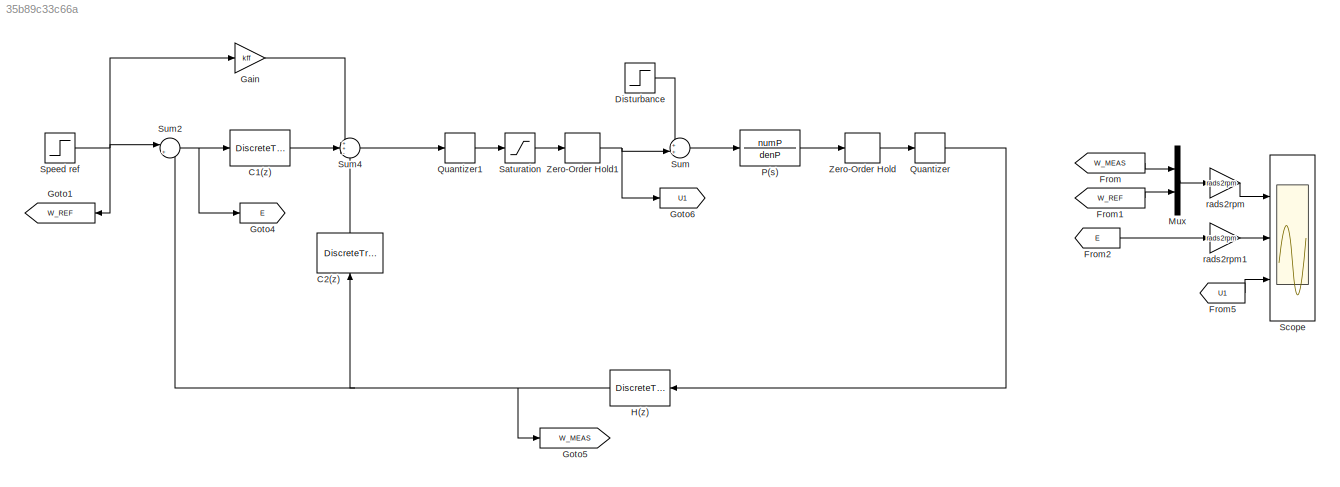
MODEL slx_35b89c33c66a
KIND model
CONFIG AbsTol = auto
CONFIG EnableMultiTasking = off
CONFIG FixedStep = auto
CONFIG MaxStep = 0.001
CONFIG MinStep = auto
CONFIG RelTol = 1e-3
CONFIG SampleTimeConstraint = Unconstrained
CONFIG Solver = ode45
CONFIG SolverName = ode45
CONFIG StartTime = 0.0
CONFIG StopTime = 2
BLOCK [DiscreteTransferFcn] C1(z)
  Denominator = denC1
  InputPortMap = u0
  Numerator = numC1
  Ports = [1, 1]
  SampleTime = Ts
BLOCK [DiscreteTransferFcn] C2(z)
  Denominator = denC2
  InputPortMap = u0
  Numerator = numC2
  Ports = [1, 1]
  SampleTime = Ts
BLOCK [Step] Disturbance
  After = Ad
  SampleTime = 0
  Time = t0d
BLOCK [From] From
  GotoTag = W_MEAS
BLOCK [From] From1
  GotoTag = W_REF
BLOCK [From] From2
  GotoTag = E
BLOCK [From] From5
  GotoTag = U1
BLOCK [Gain] Gain
  Gain = kff
  OutDataTypeStr = Inherit: Inherit via internal rule
  ParamDataTypeStr = Inherit: Inherit via internal rule
  SaturateOnIntegerOverflow = off
BLOCK [Goto] Goto1
  GotoTag = W_REF
BLOCK [Goto] Goto4
  GotoTag = E
BLOCK [Goto] Goto5
  GotoTag = W_MEAS
BLOCK [Goto] Goto6
  GotoTag = U1
BLOCK [DiscreteTransferFcn] H(z)
  Denominator = denH
  InputPortMap = u0
  Numerator = numH
  Ports = [1, 1]
  SampleTime = Ts
BLOCK [Mux] Mux
  DisplayOption = bar
  Inputs = 2
  Ports = [2, 1]
BLOCK [TransferFcn] P(s)
  Denominator = denP
  Numerator = numP
BLOCK [Quantizer] Quantizer
  QuantizationInterval = 2*pi/2000
BLOCK [Quantizer] Quantizer1
  QuantizationInterval = 20/2^10
BLOCK [Saturate] Saturation
  InputPortMap = u0
  LowerLimit = -10
  Ports = [1, 1]
  UpperLimit = 10
BLOCK [Scope] Scope
  Floating = off
  NumInputPorts = 3
  Ports = [3]
  ScopeSpecificationString = Simulink.scopes.TimeScopeBlockCfg('CurrentConfiguration', extmgr.ConfigurationSet(extmgr.Configuration('Core','General UI',true),extmgr.Configuration('Core','Source UI',true),extmgr.Configuration('Sources','WiredSimulink',true,'DataLoggingVariableName','simres','DataLogging',true,'DataLoggingSaveFormat','StructureWithTime'),extmgr.Configuration('Visuals','Time Domain',true,'SerializedDisplays',{st...<+2842ch>
BLOCK [Step] Speed ref
  After = Ar
  SampleTime = Ts
  Time = t0r
BLOCK [Sum] Sum
  IconShape = round
  InputSameDT = off
  Inputs = ++|
  OutDataTypeStr = Inherit: Inherit via internal rule
  Ports = [2, 1]
  SaturateOnIntegerOverflow = off
BLOCK [Sum] Sum2
  IconShape = round
  InputSameDT = off
  Inputs = |+-
  OutDataTypeStr = Inherit: Inherit via internal rule
  Ports = [2, 1]
  SaturateOnIntegerOverflow = off
BLOCK [Sum] Sum4
  IconShape = round
  InputSameDT = off
  Inputs = ++-
  OutDataTypeStr = Inherit: Inherit via internal rule
  Ports = [3, 1]
  SaturateOnIntegerOverflow = off
BLOCK [ZeroOrderHold] Zero-Order Hold
  SampleTime = Ts
BLOCK [ZeroOrderHold] Zero-Order Hold1
  SampleTime = Ts
BLOCK [Gain] rads2rpm
  Gain = rads2rpm
  OutDataTypeStr = Inherit: Inherit via internal rule
  ParamDataTypeStr = Inherit: Inherit via internal rule
  SaturateOnIntegerOverflow = off
BLOCK [Gain] rads2rpm1
  Gain = rads2rpm
  OutDataTypeStr = Inherit: Inherit via internal rule
  ParamDataTypeStr = Inherit: Inherit via internal rule
  SaturateOnIntegerOverflow = off
LINE C1(z):1 -> Sum4:2
LINE C2(z):1 -> Sum4:3
LINE Disturbance:1 -> Sum:1
LINE From1:1 -> Mux:2
LINE From2:1 -> rads2rpm1:1
LINE From5:1 -> Scope:3
LINE From:1 -> Mux:1
LINE Gain:1 -> Sum4:1
NET H(z):1 -> C2(z):1, Goto5:1, Sum2:2
LINE Mux:1 -> rads2rpm:1
LINE P(s):1 -> Zero-Order Hold:1
LINE Quantizer1:1 -> Saturation:1
LINE Quantizer:1 -> H(z):1
LINE Saturation:1 -> Zero-Order Hold1:1
NET Speed ref:1 -> Gain:1, Goto1:1, Sum2:1
NET Sum2:1 -> C1(z):1, Goto4:1
LINE Sum4:1 -> Quantizer1:1
LINE Sum:1 -> P(s):1
NET Zero-Order Hold1:1 -> Goto6:1, Sum:2
LINE Zero-Order Hold:1 -> Quantizer:1
LINE rads2rpm1:1 -> Scope:2
LINE rads2rpm:1 -> Scope:1
note: NET lines group one-source signal fan-out (src -> all destinations, sorted); 1:1 wires keep LINE
